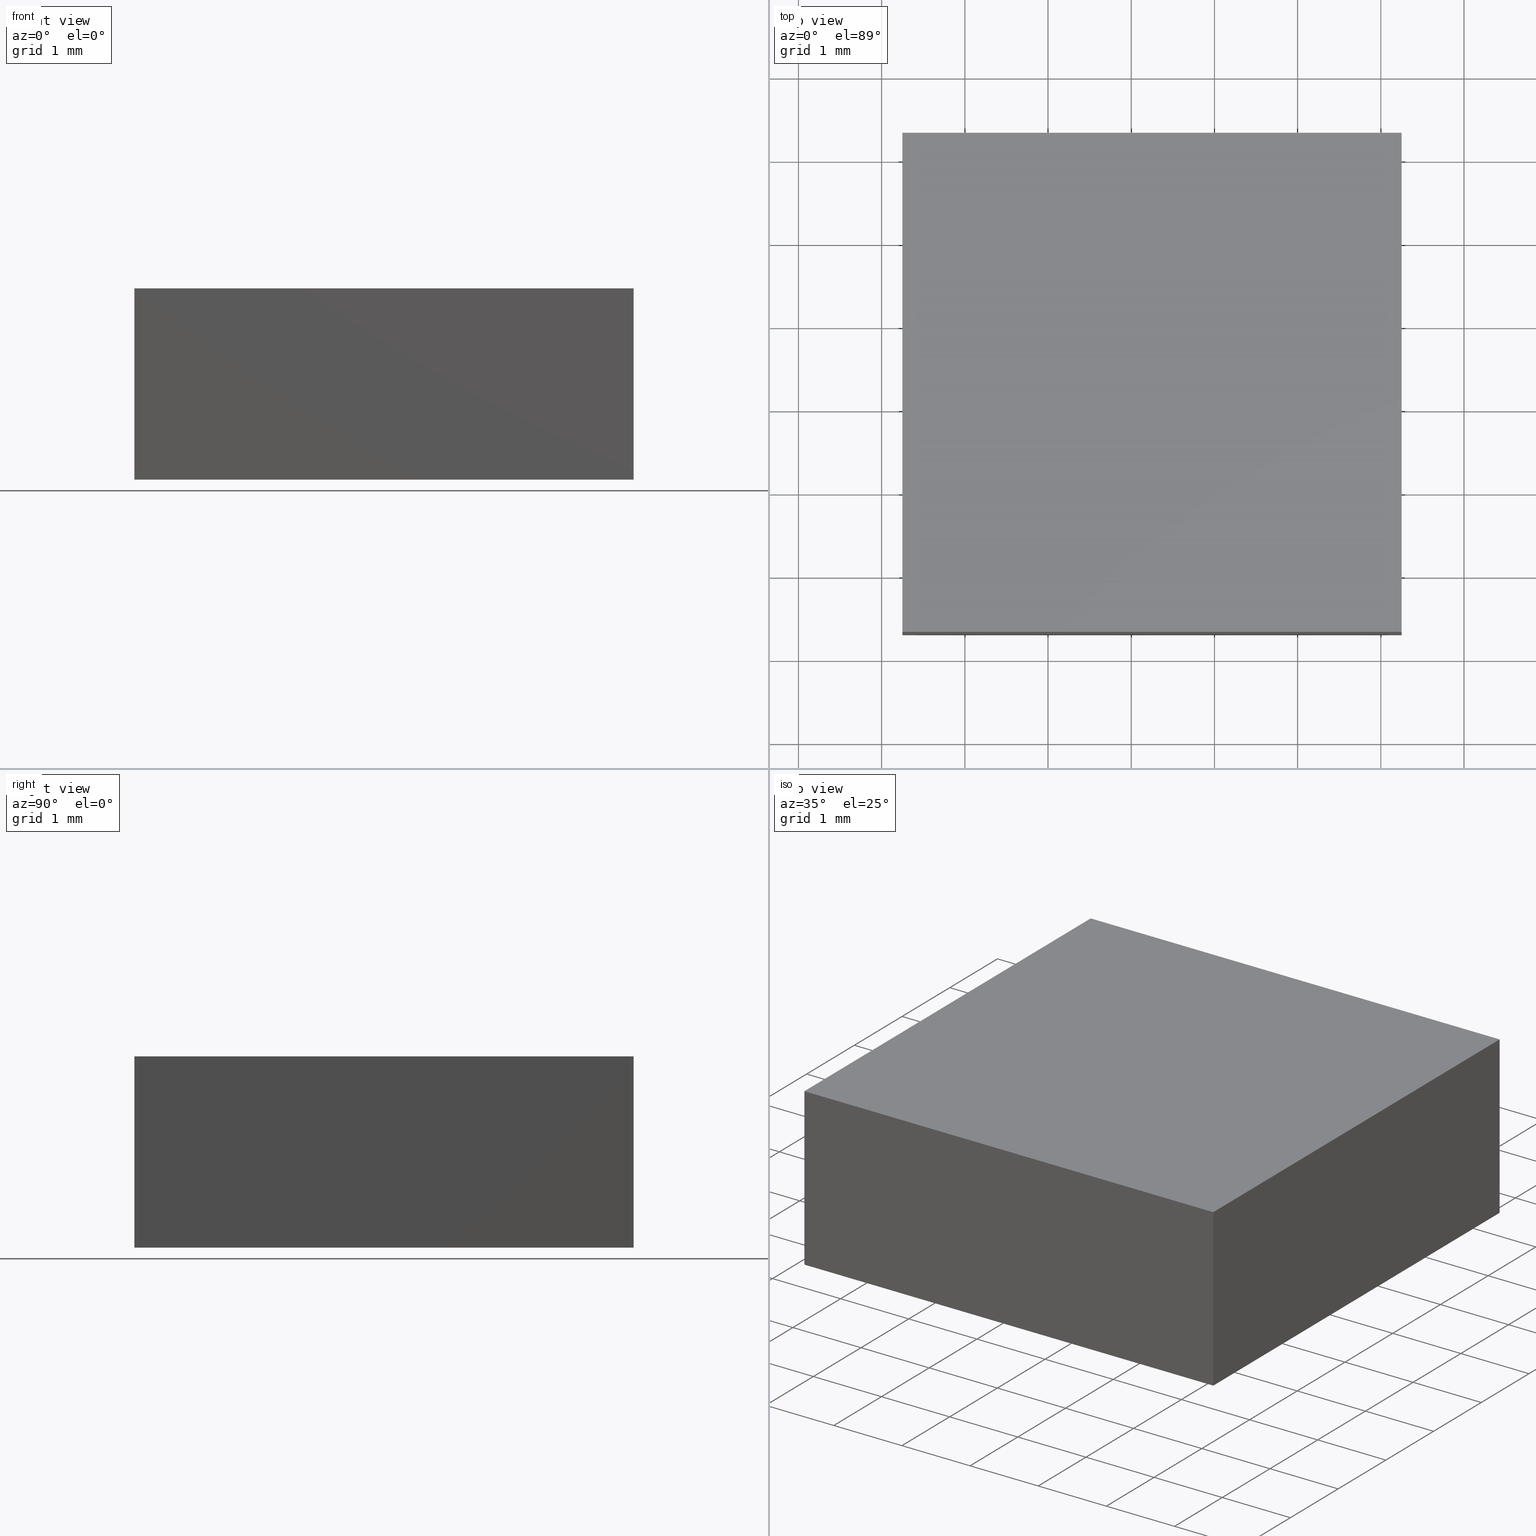
[diagram: canonical four-view strip — front | top / right | iso, engineering-drawing reading convention]
A machine part, canonical four-view strip (front | top / right | iso — engineering-drawing reading convention). The complete STEP part file that produces these views, byte-faithful:
ISO-10303-21;
HEADER;
FILE_DESCRIPTION (( 'STEP AP214' ),
    '1' );
FILE_NAME ('302502.STEP',
    '2019-08-13T02:40:37',
    ( '' ),
    ( '' ),
    'SwSTEP 2.0',
    'SolidWorks 2016',
    '' );
FILE_SCHEMA (( 'AUTOMOTIVE_DESIGN' ));
ENDSEC;

DATA;
#1 = FILL_AREA_STYLE_COLOUR ( '', #28 ) ;
#2 = DIRECTION ( 'NONE',  ( -5.782411586589356700E-016, -1.000000000000000000, 0.0000000000000000000 ) ) ;
#3 = CARTESIAN_POINT ( 'NONE',  ( 17.24958715517702100, 15.31264836690531800, 2.299999999999999800 ) ) ;
#4 = ORIENTED_EDGE ( 'NONE', *, *, #8, .T. ) ;
#5 = CARTESIAN_POINT ( 'NONE',  ( 23.24958715517701800, 9.312648366905317900, 0.0000000000000000000 ) ) ;
#6 = CARTESIAN_POINT ( 'NONE',  ( 0.0000000000000000000, 0.0000000000000000000, 0.0000000000000000000 ) ) ;
#7 = PLANE ( 'NONE',  #191 ) ;
#8 = EDGE_CURVE ( 'NONE', #40, #135, #56, .T. ) ;
#9 = VERTEX_POINT ( 'NONE', #118 ) ;
#10 =( LENGTH_UNIT ( ) NAMED_UNIT ( * ) SI_UNIT ( .MILLI., .METRE. ) );
#11 = DIRECTION ( 'NONE',  ( 0.0000000000000000000, 0.0000000000000000000, 1.000000000000000000 ) ) ;
#12 = SURFACE_STYLE_USAGE ( .BOTH. , #100 ) ;
#13 = LINE ( 'NONE', #171, #55 ) ;
#14 = VECTOR ( 'NONE', #96, 1000.000000000000000 ) ;
#15 = ORIENTED_EDGE ( 'NONE', *, *, #181, .F. ) ;
#16 = PRODUCT_DEFINITION_SHAPE ( 'NONE', 'NONE',  #23 ) ;
#17 =( GEOMETRIC_REPRESENTATION_CONTEXT ( 3 ) GLOBAL_UNCERTAINTY_ASSIGNED_CONTEXT ( ( #85 ) ) GLOBAL_UNIT_ASSIGNED_CONTEXT ( ( #10, #176, #194 ) ) REPRESENTATION_CONTEXT ( 'NONE', 'WORKASPACE' ) );
#18 = SURFACE_STYLE_USAGE ( .BOTH. , #31 ) ;
#19 = PLANE ( 'NONE',  #144 ) ;
#20 = LINE ( 'NONE', #141, #162 ) ;
#21 = CARTESIAN_POINT ( 'NONE',  ( 17.24958715517702100, 15.31264836690531800, 0.0000000000000000000 ) ) ;
#22 = CARTESIAN_POINT ( 'NONE',  ( 23.24958715517702100, 15.31264836690531800, 0.0000000000000000000 ) ) ;
#23 = PRODUCT_DEFINITION ( 'δ֪', '', #157, #133 ) ;
#24 = VECTOR ( 'NONE', #34, 1000.000000000000000 ) ;
#25 = ADVANCED_FACE ( 'NONE', ( #38 ), #19, .T. ) ;
#26 = ORIENTED_EDGE ( 'NONE', *, *, #90, .T. ) ;
#27 = APPLICATION_CONTEXT ( 'automotive_design' ) ;
#28 = COLOUR_RGB ( '',1.000000000000000000, 1.000000000000000000, 1.000000000000000000 ) ;
#29 = VECTOR ( 'NONE', #152, 1000.000000000000000 ) ;
#30 = VERTEX_POINT ( 'NONE', #107 ) ;
#31 = SURFACE_SIDE_STYLE ('',( #52 ) ) ;
#32 = FILL_AREA_STYLE ('',( #1 ) ) ;
#33 = DIRECTION ( 'NONE',  ( 1.000000000000000000, -5.782411586589356700E-016, 0.0000000000000000000 ) ) ;
#34 = DIRECTION ( 'NONE',  ( 5.782411586589356700E-016, 1.000000000000000000, -0.0000000000000000000 ) ) ;
#35 = EDGE_CURVE ( 'NONE', #9, #180, #138, .T. ) ;
#36 = LINE ( 'NONE', #172, #14 ) ;
#37 = VERTEX_POINT ( 'NONE', #106 ) ;
#38 = FACE_OUTER_BOUND ( 'NONE', #151, .T. ) ;
#39 = PRESENTATION_STYLE_ASSIGNMENT (( #12 ) ) ;
#40 = VERTEX_POINT ( 'NONE', #59 ) ;
#41 = ORIENTED_EDGE ( 'NONE', *, *, #49, .F. ) ;
#42 = CARTESIAN_POINT ( 'NONE',  ( 23.24958715517702100, 15.31264836690531800, 2.299999999999999800 ) ) ;
#43 = CARTESIAN_POINT ( 'NONE',  ( 23.24958715517701800, 9.312648366905317900, 2.299999999999999800 ) ) ;
#44 = CARTESIAN_POINT ( 'NONE',  ( 0.0000000000000000000, 0.0000000000000000000, 2.299999999999999800 ) ) ;
#45 = DIRECTION ( 'NONE',  ( -0.0000000000000000000, -0.0000000000000000000, -1.000000000000000000 ) ) ;
#46 = CARTESIAN_POINT ( 'NONE',  ( 17.24958715517701800, 9.312648366905317900, 2.299999999999999800 ) ) ;
#47 = EDGE_LOOP ( 'NONE', ( #186, #84, #202, #122 ) ) ;
#48 = DIRECTION ( 'NONE',  ( 0.0000000000000000000, 1.000000000000000000, 0.0000000000000000000 ) ) ;
#49 = EDGE_CURVE ( 'NONE', #146, #30, #154, .T. ) ;
#50 = MANIFOLD_SOLID_BREP ( '͹̨-����1', #192 ) ;
#51 = DIRECTION ( 'NONE',  ( -1.000000000000000000, 5.782411586589356700E-016, 0.0000000000000000000 ) ) ;
#52 = SURFACE_STYLE_FILL_AREA ( #32 ) ;
#53 = DIRECTION ( 'NONE',  ( 0.0000000000000000000, -0.0000000000000000000, 1.000000000000000000 ) ) ;
#54 = ADVANCED_FACE ( 'NONE', ( #119 ), #75, .F. ) ;
#55 = VECTOR ( 'NONE', #125, 1000.000000000000000 ) ;
#56 = LINE ( 'NONE', #43, #93 ) ;
#57 = EDGE_CURVE ( 'NONE', #146, #40, #137, .T. ) ;
#58 =( LENGTH_UNIT ( ) NAMED_UNIT ( * ) SI_UNIT ( .MILLI., .METRE. ) );
#59 = CARTESIAN_POINT ( 'NONE',  ( 23.24958715517701800, 9.312648366905317900, 2.299999999999999800 ) ) ;
#60 = COLOUR_RGB ( '',1.000000000000000000, 1.000000000000000000, 1.000000000000000000 ) ;
#61 = ORIENTED_EDGE ( 'NONE', *, *, #68, .F. ) ;
#62 = CARTESIAN_POINT ( 'NONE',  ( 0.0000000000000000000, 0.0000000000000000000, 0.0000000000000000000 ) ) ;
#63 = CARTESIAN_POINT ( 'NONE',  ( 17.24958715517701800, 9.312648366905317900, 2.299999999999999800 ) ) ;
#64 = DIRECTION ( 'NONE',  ( -1.000000000000000000, -0.0000000000000000000, -0.0000000000000000000 ) ) ;
#65 = VECTOR ( 'NONE', #45, 1000.000000000000000 ) ;
#66 = AXIS2_PLACEMENT_3D ( 'NONE', #127, #48, #53 ) ;
#67 = DIRECTION ( 'NONE',  ( 1.000000000000000000, 0.0000000000000000000, 0.0000000000000000000 ) ) ;
#68 = EDGE_CURVE ( 'NONE', #135, #180, #83, .T. ) ;
#69 = ADVANCED_FACE ( 'NONE', ( #91 ), #111, .F. ) ;
#70 = ORIENTED_EDGE ( 'NONE', *, *, #103, .F. ) ;
#71 = ADVANCED_FACE ( 'NONE', ( #150 ), #94, .F. ) ;
#72 = PRODUCT_CONTEXT ( 'NONE', #27, 'mechanical' ) ;
#73 = EDGE_LOOP ( 'NONE', ( #115, #70, #74, #195 ) ) ;
#74 = ORIENTED_EDGE ( 'NONE', *, *, #90, .F. ) ;
#75 = PLANE ( 'NONE',  #129 ) ;
#76 = DIRECTION ( 'NONE',  ( -0.0000000000000000000, -0.0000000000000000000, -1.000000000000000000 ) ) ;
#77 = MECHANICAL_DESIGN_GEOMETRIC_PRESENTATION_REPRESENTATION (  '', ( #158 ), #87 ) ;
#78 = DIRECTION ( 'NONE',  ( 1.000000000000000000, 0.0000000000000000000, 0.0000000000000000000 ) ) ;
#79 = CARTESIAN_POINT ( 'NONE',  ( 23.24958715517702100, 15.31264836690531800, 2.299999999999999800 ) ) ;
#80 = ORIENTED_EDGE ( 'NONE', *, *, #68, .T. ) ;
#81 =( LENGTH_UNIT ( ) NAMED_UNIT ( * ) SI_UNIT ( .MILLI., .METRE. ) );
#82 = VECTOR ( 'NONE', #76, 1000.000000000000000 ) ;
#83 = LINE ( 'NONE', #124, #24 ) ;
#84 = ORIENTED_EDGE ( 'NONE', *, *, #8, .F. ) ;
#85 = UNCERTAINTY_MEASURE_WITH_UNIT (LENGTH_MEASURE( 1.000000000000000100E-005 ), #10, 'distance_accuracy_value', 'NONE');
#86 = PRESENTATION_STYLE_ASSIGNMENT (( #18 ) ) ;
#87 =( GEOMETRIC_REPRESENTATION_CONTEXT ( 3 ) GLOBAL_UNCERTAINTY_ASSIGNED_CONTEXT ( ( #117 ) ) GLOBAL_UNIT_ASSIGNED_CONTEXT ( ( #58, #167, #136 ) ) REPRESENTATION_CONTEXT ( 'NONE', 'WORKASPACE' ) );
#88 = VECTOR ( 'NONE', #2, 1000.000000000000000 ) ;
#89 = VERTEX_POINT ( 'NONE', #21 ) ;
#90 = EDGE_CURVE ( 'NONE', #9, #37, #130, .T. ) ;
#91 = FACE_OUTER_BOUND ( 'NONE', #73, .T. ) ;
#92 = DIRECTION ( 'NONE',  ( -0.0000000000000000000, -0.0000000000000000000, -1.000000000000000000 ) ) ;
#93 = VECTOR ( 'NONE', #92, 1000.000000000000000 ) ;
#94 = PLANE ( 'NONE',  #193 ) ;
#95 = EDGE_CURVE ( 'NONE', #40, #9, #13, .T. ) ;
#96 = DIRECTION ( 'NONE',  ( -5.782411586589356700E-016, -1.000000000000000000, 0.0000000000000000000 ) ) ;
#97 =( NAMED_UNIT ( * ) PLANE_ANGLE_UNIT ( ) SI_UNIT ( $, .RADIAN. ) );
#98 = SHAPE_DEFINITION_REPRESENTATION ( #16, #159 ) ;
#99 = CARTESIAN_POINT ( 'NONE',  ( 17.24958715517701800, 9.312648366905317900, 0.0000000000000000000 ) ) ;
#100 = SURFACE_SIDE_STYLE ('',( #177 ) ) ;
#101 = FILL_AREA_STYLE ('',( #156 ) ) ;
#102 = ORIENTED_EDGE ( 'NONE', *, *, #57, .T. ) ;
#103 = EDGE_CURVE ( 'NONE', #37, #89, #20, .T. ) ;
#104 = ORIENTED_EDGE ( 'NONE', *, *, #197, .F. ) ;
#105 = ORIENTED_EDGE ( 'NONE', *, *, #174, .F. ) ;
#106 = CARTESIAN_POINT ( 'NONE',  ( 17.24958715517702100, 15.31264836690531800, 2.299999999999999800 ) ) ;
#107 = CARTESIAN_POINT ( 'NONE',  ( 17.24958715517701800, 9.312648366905317900, 0.0000000000000000000 ) ) ;
#108 = DIRECTION ( 'NONE',  ( 5.782411586589356700E-016, 1.000000000000000000, 0.0000000000000000000 ) ) ;
#109 =( NAMED_UNIT ( * ) SI_UNIT ( $, .STERADIAN. ) SOLID_ANGLE_UNIT ( ) );
#110 = PRESENTATION_LAYER_ASSIGNMENT (  '', '', ( #158 ) ) ;
#111 = PLANE ( 'NONE',  #147 ) ;
#112 = ORIENTED_EDGE ( 'NONE', *, *, #35, .F. ) ;
#113 = EDGE_CURVE ( 'NONE', #89, #30, #134, .T. ) ;
#114 = ORIENTED_EDGE ( 'NONE', *, *, #197, .T. ) ;
#115 = ORIENTED_EDGE ( 'NONE', *, *, #174, .T. ) ;
#116 = EDGE_LOOP ( 'NONE', ( #183, #105, #61, #15 ) ) ;
#117 = UNCERTAINTY_MEASURE_WITH_UNIT (LENGTH_MEASURE( 1.000000000000000100E-005 ), #58, 'distance_accuracy_value', 'NONE');
#118 = CARTESIAN_POINT ( 'NONE',  ( 23.24958715517702100, 15.31264836690531800, 2.299999999999999800 ) ) ;
#119 = FACE_OUTER_BOUND ( 'NONE', #143, .T. ) ;
#120 = AXIS2_PLACEMENT_3D ( 'NONE', #6, #11, #128 ) ;
#121 = DIRECTION ( 'NONE',  ( 1.000000000000000000, 0.0000000000000000000, 0.0000000000000000000 ) ) ;
#122 = ORIENTED_EDGE ( 'NONE', *, *, #49, .T. ) ;
#123 = CARTESIAN_POINT ( 'NONE',  ( 17.24958715517702100, 15.31264836690531800, 0.0000000000000000000 ) ) ;
#124 = CARTESIAN_POINT ( 'NONE',  ( 23.24958715517702100, 15.31264836690531800, 0.0000000000000000000 ) ) ;
#125 = DIRECTION ( 'NONE',  ( 5.782411586589356700E-016, 1.000000000000000000, -0.0000000000000000000 ) ) ;
#126 = STYLED_ITEM ( 'NONE', ( #39 ), #159 ) ;
#127 = CARTESIAN_POINT ( 'NONE',  ( 17.24958715517701800, 9.312648366905317900, 2.299999999999999800 ) ) ;
#128 = DIRECTION ( 'NONE',  ( 1.000000000000000000, 0.0000000000000000000, 0.0000000000000000000 ) ) ;
#129 = AXIS2_PLACEMENT_3D ( 'NONE', #200, #33, #108 ) ;
#130 = LINE ( 'NONE', #188, #29 ) ;
#131 = APPLICATION_PROTOCOL_DEFINITION ( 'draft international standard', 'automotive_design', 1998, #27 ) ;
#132 = MECHANICAL_DESIGN_GEOMETRIC_PRESENTATION_REPRESENTATION (  '', ( #126 ), #17 ) ;
#133 = PRODUCT_DEFINITION_CONTEXT ( 'detailed design', #160, 'design' ) ;
#134 = LINE ( 'NONE', #139, #88 ) ;
#135 = VERTEX_POINT ( 'NONE', #5 ) ;
#136 =( NAMED_UNIT ( * ) SI_UNIT ( $, .STERADIAN. ) SOLID_ANGLE_UNIT ( ) );
#137 = LINE ( 'NONE', #63, #175 ) ;
#138 = LINE ( 'NONE', #42, #82 ) ;
#139 = CARTESIAN_POINT ( 'NONE',  ( 17.24958715517702100, 15.31264836690531800, 0.0000000000000000000 ) ) ;
#140 = DIRECTION ( 'NONE',  ( -0.0000000000000000000, 0.0000000000000000000, 1.000000000000000000 ) ) ;
#141 = CARTESIAN_POINT ( 'NONE',  ( 17.24958715517702100, 15.31264836690531800, 2.299999999999999800 ) ) ;
#142 = ADVANCED_FACE ( 'NONE', ( #145 ), #7, .F. ) ;
#143 = EDGE_LOOP ( 'NONE', ( #170, #41, #104, #161 ) ) ;
#144 = AXIS2_PLACEMENT_3D ( 'NONE', #44, #169, #78 ) ;
#145 = FACE_OUTER_BOUND ( 'NONE', #198, .T. ) ;
#146 = VERTEX_POINT ( 'NONE', #46 ) ;
#147 = AXIS2_PLACEMENT_3D ( 'NONE', #3, #187, #155 ) ;
#148 =( GEOMETRIC_REPRESENTATION_CONTEXT ( 3 ) GLOBAL_UNCERTAINTY_ASSIGNED_CONTEXT ( ( #178 ) ) GLOBAL_UNIT_ASSIGNED_CONTEXT ( ( #81, #97, #109 ) ) REPRESENTATION_CONTEXT ( 'NONE', 'WORKASPACE' ) );
#149 = CARTESIAN_POINT ( 'NONE',  ( 17.24958715517701800, 9.312648366905317900, 2.299999999999999800 ) ) ;
#150 = FACE_OUTER_BOUND ( 'NONE', #116, .T. ) ;
#151 = EDGE_LOOP ( 'NONE', ( #114, #102, #163, #26 ) ) ;
#152 = DIRECTION ( 'NONE',  ( -1.000000000000000000, -0.0000000000000000000, -0.0000000000000000000 ) ) ;
#153 = DIRECTION ( 'NONE',  ( 1.000000000000000000, 0.0000000000000000000, 0.0000000000000000000 ) ) ;
#154 = LINE ( 'NONE', #149, #65 ) ;
#155 = DIRECTION ( 'NONE',  ( 0.0000000000000000000, -0.0000000000000000000, -1.000000000000000000 ) ) ;
#156 = FILL_AREA_STYLE_COLOUR ( '', #60 ) ;
#157 = PRODUCT_DEFINITION_FORMATION_WITH_SPECIFIED_SOURCE ( '�κ�', '', #199, .NOT_KNOWN. ) ;
#158 = STYLED_ITEM ( 'NONE', ( #86 ), #50 ) ;
#159 = ADVANCED_BREP_SHAPE_REPRESENTATION ( '302502', ( #50, #120 ), #148 ) ;
#160 = APPLICATION_CONTEXT ( 'automotive_design' ) ;
#161 = ORIENTED_EDGE ( 'NONE', *, *, #103, .T. ) ;
#162 = VECTOR ( 'NONE', #185, 1000.000000000000000 ) ;
#163 = ORIENTED_EDGE ( 'NONE', *, *, #95, .T. ) ;
#164 = PRESENTATION_LAYER_ASSIGNMENT (  '', '', ( #126 ) ) ;
#165 = VECTOR ( 'NONE', #153, 1000.000000000000000 ) ;
#166 = ORIENTED_EDGE ( 'NONE', *, *, #95, .F. ) ;
#167 =( NAMED_UNIT ( * ) PLANE_ANGLE_UNIT ( ) SI_UNIT ( $, .RADIAN. ) );
#168 = VECTOR ( 'NONE', #64, 1000.000000000000000 ) ;
#169 = DIRECTION ( 'NONE',  ( -0.0000000000000000000, 0.0000000000000000000, 1.000000000000000000 ) ) ;
#170 = ORIENTED_EDGE ( 'NONE', *, *, #113, .T. ) ;
#171 = CARTESIAN_POINT ( 'NONE',  ( 23.24958715517702100, 15.31264836690531800, 2.299999999999999800 ) ) ;
#172 = CARTESIAN_POINT ( 'NONE',  ( 17.24958715517702100, 15.31264836690531800, 2.299999999999999800 ) ) ;
#173 = PLANE ( 'NONE',  #66 ) ;
#174 = EDGE_CURVE ( 'NONE', #180, #89, #182, .T. ) ;
#175 = VECTOR ( 'NONE', #121, 1000.000000000000000 ) ;
#176 =( NAMED_UNIT ( * ) PLANE_ANGLE_UNIT ( ) SI_UNIT ( $, .RADIAN. ) );
#177 = SURFACE_STYLE_FILL_AREA ( #101 ) ;
#178 = UNCERTAINTY_MEASURE_WITH_UNIT (LENGTH_MEASURE( 1.000000000000000100E-005 ), #81, 'distance_accuracy_value', 'NONE');
#179 = FACE_OUTER_BOUND ( 'NONE', #47, .T. ) ;
#180 = VERTEX_POINT ( 'NONE', #22 ) ;
#181 = EDGE_CURVE ( 'NONE', #30, #135, #201, .T. ) ;
#182 = LINE ( 'NONE', #123, #168 ) ;
#183 = ORIENTED_EDGE ( 'NONE', *, *, #113, .F. ) ;
#184 = DIRECTION ( 'NONE',  ( -5.782411586589356700E-016, -1.000000000000000000, 0.0000000000000000000 ) ) ;
#185 = DIRECTION ( 'NONE',  ( -0.0000000000000000000, -0.0000000000000000000, -1.000000000000000000 ) ) ;
#186 = ORIENTED_EDGE ( 'NONE', *, *, #181, .T. ) ;
#187 = DIRECTION ( 'NONE',  ( 0.0000000000000000000, -1.000000000000000000, 0.0000000000000000000 ) ) ;
#188 = CARTESIAN_POINT ( 'NONE',  ( 17.24958715517702100, 15.31264836690531800, 2.299999999999999800 ) ) ;
#189 = APPLICATION_PROTOCOL_DEFINITION ( 'draft international standard', 'automotive_design', 1998, #160 ) ;
#190 = ADVANCED_FACE ( 'NONE', ( #179 ), #173, .F. ) ;
#191 = AXIS2_PLACEMENT_3D ( 'NONE', #79, #51, #184 ) ;
#192 = CLOSED_SHELL ( 'NONE', ( #54, #190, #142, #69, #25, #71 ) ) ;
#193 = AXIS2_PLACEMENT_3D ( 'NONE', #62, #140, #67 ) ;
#194 =( NAMED_UNIT ( * ) SI_UNIT ( $, .STERADIAN. ) SOLID_ANGLE_UNIT ( ) );
#195 = ORIENTED_EDGE ( 'NONE', *, *, #35, .T. ) ;
#196 = PRODUCT_RELATED_PRODUCT_CATEGORY ( 'part', '', ( #199 ) ) ;
#197 = EDGE_CURVE ( 'NONE', #37, #146, #36, .T. ) ;
#198 = EDGE_LOOP ( 'NONE', ( #80, #112, #166, #4 ) ) ;
#199 = PRODUCT ( '302502', '302502', '', ( #72 ) ) ;
#200 = CARTESIAN_POINT ( 'NONE',  ( 17.24958715517702100, 15.31264836690531800, 2.299999999999999800 ) ) ;
#201 = LINE ( 'NONE', #99, #165 ) ;
#202 = ORIENTED_EDGE ( 'NONE', *, *, #57, .F. ) ;
ENDSEC;
END-ISO-10303-21;
